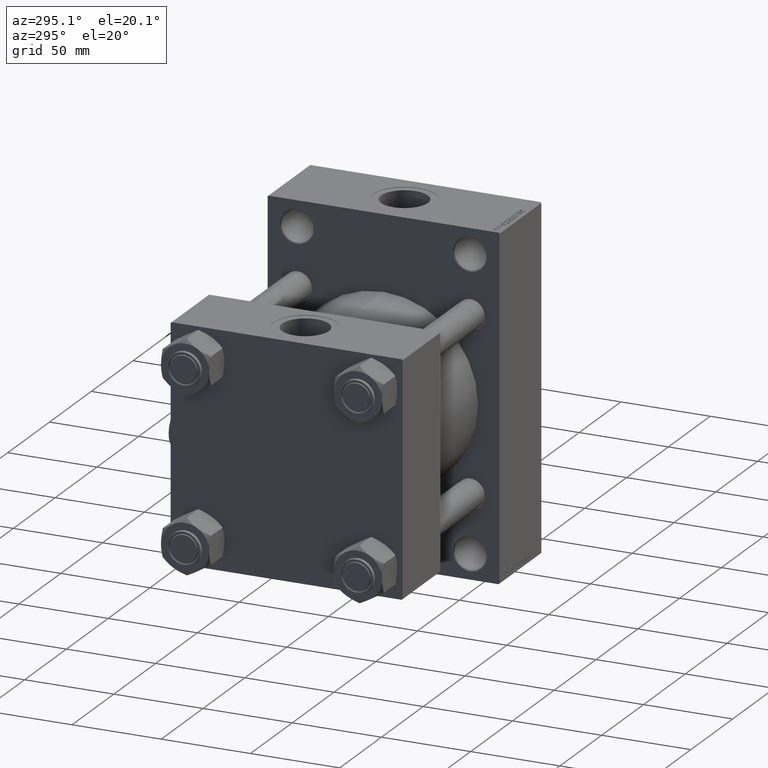
[diagram: clean part render]
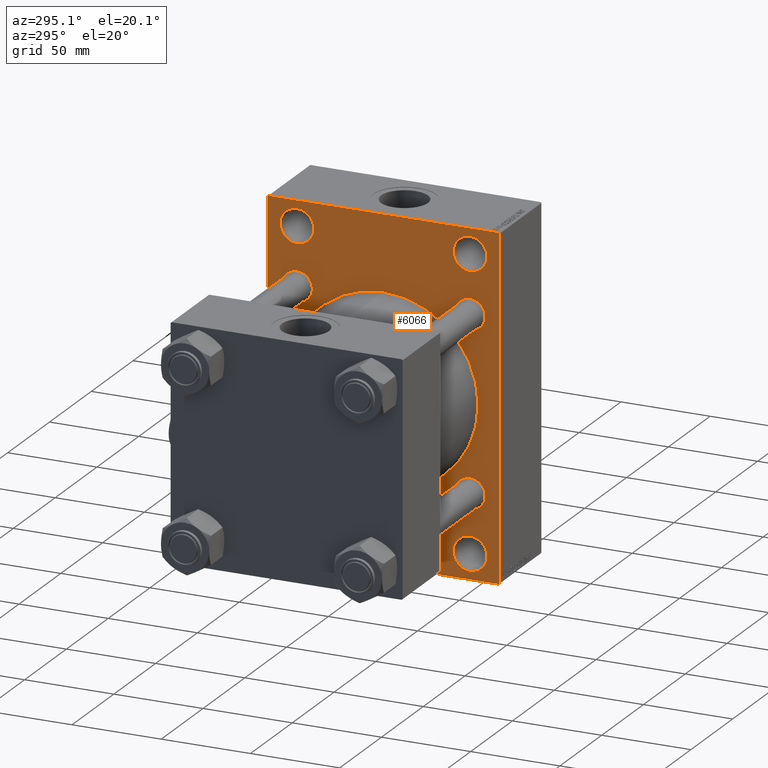
[diagram: same view with one face highlighted and labeled with its STEP entity id]
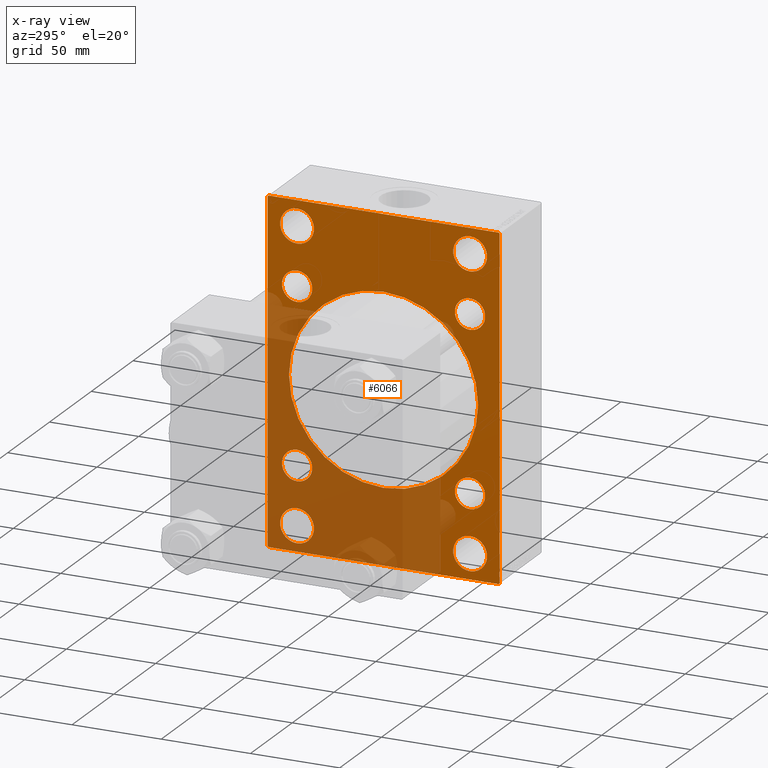
[diagram: x-ray of the same camera — body ghosted, the highlighted face saturated]
A machine part, auxiliary view. The second image highlights one B-rep face of the part: STEP entity #6066.
The next image is the same camera in x-ray: the body ghosted, the highlighted face saturated — about 41% of this face is hidden behind the body in this view.
In plain terms, the highlighted planar face has unit normal (-1, 0, 0).
Its self-contained STEP definition (entity closure, byte-faithful):
#38 = FACE_BOUND ( 'NONE', #16376, .T. ) ;
#106 = EDGE_CURVE ( 'NONE', #14303, #39760, #40443, .T. ) ;
#443 = CARTESIAN_POINT ( 'NONE',  ( 115.9999999999999858, -65.00000000000000000, -94.50000000000001421 ) ) ;
#499 = EDGE_CURVE ( 'NONE', #40307, #10974, #21007, .T. ) ;
#851 = DIRECTION ( 'NONE',  ( 1.000000000000000000, 0.000000000000000000, 0.000000000000000000 ) ) ;
#1623 = AXIS2_PLACEMENT_3D ( 'NONE', #45269, #16887, #33599 ) ;
#1734 = CARTESIAN_POINT ( 'NONE',  ( 115.9999999999999858, -48.44999999999998153, 56.95000000000001705 ) ) ;
#1929 = CIRCLE ( 'NONE', #27936, 8.500000000000007105 ) ;
#2267 = LINE ( 'NONE', #17770, #35915 ) ;
#2533 = DIRECTION ( 'NONE',  ( 1.000000000000000000, 0.000000000000000000, 0.000000000000000000 ) ) ;
#2793 = CIRCLE ( 'NONE', #38499, 53.00000000000000711 ) ;
#3406 = DIRECTION ( 'NONE',  ( 0.000000000000000000, 0.000000000000000000, -1.000000000000000000 ) ) ;
#3426 = VERTEX_POINT ( 'NONE', #43073 ) ;
#3537 = CIRCLE ( 'NONE', #27087, 9.499999999999925393 ) ;
#3967 = ORIENTED_EDGE ( 'NONE', *, *, #25429, .T. ) ;
#4139 = DIRECTION ( 'NONE',  ( 1.000000000000000000, 0.000000000000000000, 0.000000000000000000 ) ) ;
#4290 = CIRCLE ( 'NONE', #10762, 8.500000000000007105 ) ;
#4300 = VECTOR ( 'NONE', #18592, 1000.000000000000114 ) ;
#5174 = DIRECTION ( 'NONE',  ( -0.000000000000000000, -0.7071067811865474617, -0.7071067811865474617 ) ) ;
#5273 = DIRECTION ( 'NONE',  ( 1.000000000000000000, 0.000000000000000000, 0.000000000000000000 ) ) ;
#5801 = DIRECTION ( 'NONE',  ( 1.000000000000000000, 0.000000000000000000, 0.000000000000000000 ) ) ;
#5934 = DIRECTION ( 'NONE',  ( 0.000000000000000000, 0.000000000000000000, 1.000000000000000000 ) ) ;
#5945 = AXIS2_PLACEMENT_3D ( 'NONE', #35151, #4139, #27528 ) ;
#5993 = DIRECTION ( 'NONE',  ( 0.000000000000000000, 0.000000000000000000, 1.000000000000000000 ) ) ;
#6066 = ADVANCED_FACE ( 'NONE', ( #7160, #10711, #38, #23412, #15536, #31060, #22420, #18348, #27244, #42734 ), #33874, .T. ) ;
#6441 = CARTESIAN_POINT ( 'NONE',  ( 115.9999999999999858, -48.44999999999998153, -48.45000000000000995 ) ) ;
#6485 = DIRECTION ( 'NONE',  ( 1.000000000000000000, 0.000000000000000000, 0.000000000000000000 ) ) ;
#6549 = EDGE_CURVE ( 'NONE', #19329, #50125, #24340, .T. ) ;
#6660 = CARTESIAN_POINT ( 'NONE',  ( 115.9999999999999858, 79.75000000000000000, 79.75000000000000000 ) ) ;
#7021 = CARTESIAN_POINT ( 'NONE',  ( 115.9999999999999858, -2.602085213965210642E-15, 53.00000000000000711 ) ) ;
#7160 = FACE_BOUND ( 'NONE', #11750, .T. ) ;
#7270 = CARTESIAN_POINT ( 'NONE',  ( 115.9999999999999858, -65.00000000000000000, 94.49999999999998579 ) ) ;
#7391 = DIRECTION ( 'NONE',  ( 0.000000000000000000, 0.000000000000000000, 1.000000000000000000 ) ) ;
#7394 = CARTESIAN_POINT ( 'NONE',  ( 115.9999999999999858, 48.44999999999999574, -48.44999999999999574 ) ) ;
#7453 = EDGE_CURVE ( 'NONE', #28930, #23545, #46254, .T. ) ;
#7573 = CARTESIAN_POINT ( 'NONE',  ( 115.9999999999999858, 65.00000000000000000, 95.00000000000000000 ) ) ;
#7902 = DIRECTION ( 'NONE',  ( 0.000000000000000000, 0.000000000000000000, 1.000000000000000000 ) ) ;
#7987 = VERTEX_POINT ( 'NONE', #24684 ) ;
#8718 = CARTESIAN_POINT ( 'NONE',  ( 115.9999999999999858, 48.50000000000000000, 81.00000000000000000 ) ) ;
#8858 = ORIENTED_EDGE ( 'NONE', *, *, #32600, .T. ) ;
#9175 = CIRCLE ( 'NONE', #5945, 9.499999999999925393 ) ;
#9449 = DIRECTION ( 'NONE',  ( 0.000000000000000000, 0.000000000000000000, -1.000000000000000000 ) ) ;
#9746 = EDGE_LOOP ( 'NONE', ( #21507, #17225 ) ) ;
#9830 = CARTESIAN_POINT ( 'NONE',  ( 115.9999999999999858, 64.50000000000000000, 95.00000000000000000 ) ) ;
#9909 = VERTEX_POINT ( 'NONE', #45149 ) ;
#10070 = VERTEX_POINT ( 'NONE', #7021 ) ;
#10311 = EDGE_CURVE ( 'NONE', #21169, #22823, #38234, .T. ) ;
#10462 = VECTOR ( 'NONE', #3406, 1000.000000000000000 ) ;
#10711 = FACE_BOUND ( 'NONE', #31192, .T. ) ;
#10762 = AXIS2_PLACEMENT_3D ( 'NONE', #6441, #33650, #5934 ) ;
#10971 = DIRECTION ( 'NONE',  ( -0.000000000000000000, 0.000000000000000000, 1.000000000000000000 ) ) ;
#10974 = VERTEX_POINT ( 'NONE', #34049 ) ;
#11384 = CARTESIAN_POINT ( 'NONE',  ( 115.9999999999999858, -64.50000000000000000, -95.00000000000002842 ) ) ;
#11478 = CARTESIAN_POINT ( 'NONE',  ( 115.9999999999999858, 0.000000000000000000, 0.000000000000000000 ) ) ;
#11647 = EDGE_CURVE ( 'NONE', #7987, #9909, #43785, .T. ) ;
#11717 = DIRECTION ( 'NONE',  ( 1.000000000000000000, 0.000000000000000000, 0.000000000000000000 ) ) ;
#11750 = EDGE_LOOP ( 'NONE', ( #29307, #33249 ) ) ;
#11907 = DIRECTION ( 'NONE',  ( 0.000000000000000000, 0.000000000000000000, -1.000000000000000000 ) ) ;
#11949 = CARTESIAN_POINT ( 'NONE',  ( 115.9999999999999858, 48.50000000000000000, -81.00000000000000000 ) ) ;
#12663 = CARTESIAN_POINT ( 'NONE',  ( 115.9999999999999858, 48.50000000000000000, -71.50000000000007105 ) ) ;
#13073 = EDGE_CURVE ( 'NONE', #23545, #28930, #32473, .T. ) ;
#13075 = DIRECTION ( 'NONE',  ( 0.000000000000000000, -1.000000000000000000, 0.000000000000000000 ) ) ;
#13249 = EDGE_CURVE ( 'NONE', #3426, #21840, #45363, .T. ) ;
#13961 = ORIENTED_EDGE ( 'NONE', *, *, #23800, .T. ) ;
#14130 = CARTESIAN_POINT ( 'NONE',  ( 115.9999999999999858, -48.50000000000000000, -81.00000000000000000 ) ) ;
#14206 = LINE ( 'NONE', #29474, #25484 ) ;
#14303 = VERTEX_POINT ( 'NONE', #40964 ) ;
#14508 = DIRECTION ( 'NONE',  ( 0.000000000000000000, 0.000000000000000000, 1.000000000000000000 ) ) ;
#14640 = ORIENTED_EDGE ( 'NONE', *, *, #25347, .T. ) ;
#15285 = EDGE_CURVE ( 'NONE', #39842, #17418, #25009, .T. ) ;
#15536 = FACE_BOUND ( 'NONE', #33524, .T. ) ;
#15587 = DIRECTION ( 'NONE',  ( 0.000000000000000000, 0.000000000000000000, 1.000000000000000000 ) ) ;
#15704 = AXIS2_PLACEMENT_3D ( 'NONE', #35794, #5273, #46720 ) ;
#15712 = CARTESIAN_POINT ( 'NONE',  ( 115.9999999999999858, 65.00000000000000000, 95.00000000000000000 ) ) ;
#16163 = VECTOR ( 'NONE', #13075, 1000.000000000000000 ) ;
#16184 = CARTESIAN_POINT ( 'NONE',  ( 115.9999999999999858, 65.00000000000000000, -94.50000000000002842 ) ) ;
#16376 = EDGE_LOOP ( 'NONE', ( #13961, #22743 ) ) ;
#16446 = CARTESIAN_POINT ( 'NONE',  ( 115.9999999999999858, -48.44999999999998153, -39.95000000000000284 ) ) ;
#16561 = EDGE_CURVE ( 'NONE', #44993, #21467, #20313, .T. ) ;
#16758 = EDGE_CURVE ( 'NONE', #21467, #44993, #18696, .T. ) ;
#16887 = DIRECTION ( 'NONE',  ( 1.000000000000000000, 0.000000000000000000, 0.000000000000000000 ) ) ;
#16989 = DIRECTION ( 'NONE',  ( 0.000000000000000000, 0.000000000000000000, 1.000000000000000000 ) ) ;
#17040 = CARTESIAN_POINT ( 'NONE',  ( 115.9999999999999858, 48.50000000000000000, 81.00000000000000000 ) ) ;
#17146 = ORIENTED_EDGE ( 'NONE', *, *, #38330, .T. ) ;
#17225 = ORIENTED_EDGE ( 'NONE', *, *, #24733, .T. ) ;
#17412 = AXIS2_PLACEMENT_3D ( 'NONE', #29877, #38509, #34705 ) ;
#17418 = VERTEX_POINT ( 'NONE', #11384 ) ;
#17558 = VERTEX_POINT ( 'NONE', #16446 ) ;
#17738 = CARTESIAN_POINT ( 'NONE',  ( 115.9999999999999858, -48.44999999999998153, 48.45000000000000995 ) ) ;
#17770 = CARTESIAN_POINT ( 'NONE',  ( 115.9999999999999858, -79.75000000000092371, -79.74999999999870681 ) ) ;
#17788 = DIRECTION ( 'NONE',  ( 1.000000000000000000, 0.000000000000000000, 0.000000000000000000 ) ) ;
#17838 = DIRECTION ( 'NONE',  ( 1.000000000000000000, 0.000000000000000000, 0.000000000000000000 ) ) ;
#18348 = FACE_BOUND ( 'NONE', #41433, .T. ) ;
#18592 = DIRECTION ( 'NONE',  ( 0.000000000000000000, 0.7071067811865474617, -0.7071067811865474617 ) ) ;
#18600 = DIRECTION ( 'NONE',  ( -1.000000000000000000, 0.000000000000000000, -0.000000000000000000 ) ) ;
#18696 = CIRCLE ( 'NONE', #49533, 8.500000000000007105 ) ;
#18984 = ORIENTED_EDGE ( 'NONE', *, *, #7453, .T. ) ;
#19329 = VERTEX_POINT ( 'NONE', #31237 ) ;
#19536 = LINE ( 'NONE', #15712, #41610 ) ;
#19591 = VERTEX_POINT ( 'NONE', #9830 ) ;
#20313 = CIRCLE ( 'NONE', #42217, 8.500000000000007105 ) ;
#20667 = ORIENTED_EDGE ( 'NONE', *, *, #11647, .T. ) ;
#20820 = EDGE_CURVE ( 'NONE', #17418, #22823, #2267, .T. ) ;
#21007 = CIRCLE ( 'NONE', #49403, 8.500000000000007105 ) ;
#21016 = ORIENTED_EDGE ( 'NONE', *, *, #13073, .T. ) ;
#21158 = CARTESIAN_POINT ( 'NONE',  ( 115.9999999999999858, -2.602085213965210642E-15, 0.000000000000000000 ) ) ;
#21169 = VERTEX_POINT ( 'NONE', #7270 ) ;
#21467 = VERTEX_POINT ( 'NONE', #42287 ) ;
#21507 = ORIENTED_EDGE ( 'NONE', *, *, #43673, .T. ) ;
#21840 = VERTEX_POINT ( 'NONE', #12663 ) ;
#22012 = DIRECTION ( 'NONE',  ( 0.000000000000000000, 0.000000000000000000, 1.000000000000000000 ) ) ;
#22205 = ORIENTED_EDGE ( 'NONE', *, *, #16561, .T. ) ;
#22420 = FACE_BOUND ( 'NONE', #22623, .T. ) ;
#22509 = DIRECTION ( 'NONE',  ( 1.000000000000000000, 0.000000000000000000, 0.000000000000000000 ) ) ;
#22623 = EDGE_LOOP ( 'NONE', ( #14640, #37864 ) ) ;
#22642 = DIRECTION ( 'NONE',  ( 1.000000000000000000, 0.000000000000000000, 0.000000000000000000 ) ) ;
#22743 = ORIENTED_EDGE ( 'NONE', *, *, #13249, .T. ) ;
#22823 = VERTEX_POINT ( 'NONE', #443 ) ;
#23189 = CARTESIAN_POINT ( 'NONE',  ( 115.9999999999999858, -48.50000000000000000, 71.50000000000007105 ) ) ;
#23412 = FACE_BOUND ( 'NONE', #40947, .T. ) ;
#23545 = VERTEX_POINT ( 'NONE', #44124 ) ;
#23800 = EDGE_CURVE ( 'NONE', #21840, #3426, #3537, .T. ) ;
#24273 = ORIENTED_EDGE ( 'NONE', *, *, #31292, .T. ) ;
#24340 = CIRCLE ( 'NONE', #48680, 9.499999999999925393 ) ;
#24684 = CARTESIAN_POINT ( 'NONE',  ( 115.9999999999999858, 48.50000000000000000, 71.50000000000007105 ) ) ;
#24733 = EDGE_CURVE ( 'NONE', #39590, #10070, #29561, .T. ) ;
#25009 = LINE ( 'NONE', #44337, #16163 ) ;
#25347 = EDGE_CURVE ( 'NONE', #10974, #40307, #1929, .T. ) ;
#25429 = EDGE_CURVE ( 'NONE', #21169, #45736, #14206, .T. ) ;
#25484 = VECTOR ( 'NONE', #28967, 1000.000000000000114 ) ;
#25579 = ORIENTED_EDGE ( 'NONE', *, *, #20820, .T. ) ;
#25808 = DIRECTION ( 'NONE',  ( 1.000000000000000000, 0.000000000000000000, 0.000000000000000000 ) ) ;
#25810 = EDGE_CURVE ( 'NONE', #19591, #31593, #40333, .T. ) ;
#25824 = ORIENTED_EDGE ( 'NONE', *, *, #10311, .F. ) ;
#26708 = CARTESIAN_POINT ( 'NONE',  ( 115.9999999999999858, 48.44999999999999574, -48.44999999999999574 ) ) ;
#26759 = CARTESIAN_POINT ( 'NONE',  ( 115.9999999999999858, -48.44999999999998153, -56.95000000000001705 ) ) ;
#27087 = AXIS2_PLACEMENT_3D ( 'NONE', #45131, #25808, #5993 ) ;
#27127 = AXIS2_PLACEMENT_3D ( 'NONE', #37079, #40879, #41131 ) ;
#27195 = AXIS2_PLACEMENT_3D ( 'NONE', #8718, #851, #15587 ) ;
#27244 = FACE_BOUND ( 'NONE', #9746, .T. ) ;
#27528 = DIRECTION ( 'NONE',  ( 0.000000000000000000, 0.000000000000000000, 1.000000000000000000 ) ) ;
#27936 = AXIS2_PLACEMENT_3D ( 'NONE', #26708, #42211, #7391 ) ;
#28068 = LINE ( 'NONE', #43554, #46747 ) ;
#28131 = VECTOR ( 'NONE', #31731, 1000.000000000000000 ) ;
#28144 = VERTEX_POINT ( 'NONE', #16184 ) ;
#28392 = EDGE_LOOP ( 'NONE', ( #22205, #41483 ) ) ;
#28930 = VERTEX_POINT ( 'NONE', #1734 ) ;
#28967 = DIRECTION ( 'NONE',  ( -0.000000000000000000, 0.7071067811865474617, 0.7071067811865474617 ) ) ;
#28983 = CARTESIAN_POINT ( 'NONE',  ( 115.9999999999999858, 65.00000000000000000, 94.50000000000000000 ) ) ;
#29307 = ORIENTED_EDGE ( 'NONE', *, *, #6549, .T. ) ;
#29338 = EDGE_CURVE ( 'NONE', #42341, #17558, #45005, .T. ) ;
#29474 = CARTESIAN_POINT ( 'NONE',  ( 115.9999999999999858, -79.74999999999998579, 79.74999999999998579 ) ) ;
#29561 = CIRCLE ( 'NONE', #27127, 53.00000000000000711 ) ;
#29745 = ORIENTED_EDGE ( 'NONE', *, *, #48273, .F. ) ;
#29877 = CARTESIAN_POINT ( 'NONE',  ( 115.9999999999999858, -48.44999999999998153, -48.45000000000000995 ) ) ;
#31060 = FACE_BOUND ( 'NONE', #28392, .T. ) ;
#31192 = EDGE_LOOP ( 'NONE', ( #39629, #17146 ) ) ;
#31237 = CARTESIAN_POINT ( 'NONE',  ( 115.9999999999999858, -48.50000000000000000, 90.49999999999992895 ) ) ;
#31292 = EDGE_CURVE ( 'NONE', #9909, #7987, #32893, .T. ) ;
#31593 = VERTEX_POINT ( 'NONE', #28983 ) ;
#31731 = DIRECTION ( 'NONE',  ( 0.000000000000000000, -1.000000000000000000, -1.067522139062650425E-16 ) ) ;
#32473 = CIRCLE ( 'NONE', #1623, 8.500000000000007105 ) ;
#32519 = EDGE_LOOP ( 'NONE', ( #44221, #25579, #25824, #3967, #29745, #35525, #43556, #8858 ) ) ;
#32600 = EDGE_CURVE ( 'NONE', #28144, #39842, #28068, .T. ) ;
#32893 = CIRCLE ( 'NONE', #27195, 9.499999999999925393 ) ;
#33249 = ORIENTED_EDGE ( 'NONE', *, *, #39230, .T. ) ;
#33436 = DIRECTION ( 'NONE',  ( 0.000000000000000000, 0.000000000000000000, 1.000000000000000000 ) ) ;
#33524 = EDGE_LOOP ( 'NONE', ( #18984, #21016 ) ) ;
#33599 = DIRECTION ( 'NONE',  ( 0.000000000000000000, 0.000000000000000000, 1.000000000000000000 ) ) ;
#33650 = DIRECTION ( 'NONE',  ( 1.000000000000000000, 0.000000000000000000, 0.000000000000000000 ) ) ;
#33874 = PLANE ( 'NONE',  #45413 ) ;
#34049 = CARTESIAN_POINT ( 'NONE',  ( 115.9999999999999858, 48.44999999999999574, -39.94999999999998863 ) ) ;
#34705 = DIRECTION ( 'NONE',  ( 0.000000000000000000, 0.000000000000000000, 1.000000000000000000 ) ) ;
#34891 = CARTESIAN_POINT ( 'NONE',  ( 115.9999999999999858, -64.50000000000000000, 94.99999999999998579 ) ) ;
#34938 = ORIENTED_EDGE ( 'NONE', *, *, #37148, .T. ) ;
#35151 = CARTESIAN_POINT ( 'NONE',  ( 115.9999999999999858, -48.50000000000000000, -81.00000000000000000 ) ) ;
#35525 = ORIENTED_EDGE ( 'NONE', *, *, #25810, .T. ) ;
#35629 = AXIS2_PLACEMENT_3D ( 'NONE', #11949, #46778, #47776 ) ;
#35794 = CARTESIAN_POINT ( 'NONE',  ( 115.9999999999999858, -48.50000000000000000, 81.00000000000000000 ) ) ;
#35915 = VECTOR ( 'NONE', #39906, 999.9999999999998863 ) ;
#36790 = EDGE_CURVE ( 'NONE', #31593, #28144, #19536, .T. ) ;
#37079 = CARTESIAN_POINT ( 'NONE',  ( 115.9999999999999858, -2.602085213965210642E-15, 0.000000000000000000 ) ) ;
#37148 = EDGE_CURVE ( 'NONE', #17558, #42341, #4290, .T. ) ;
#37363 = CARTESIAN_POINT ( 'NONE',  ( 115.9999999999999858, 48.44999999999999574, 48.44999999999999574 ) ) ;
#37610 = DIRECTION ( 'NONE',  ( 0.000000000000000000, 0.000000000000000000, 1.000000000000000000 ) ) ;
#37633 = CIRCLE ( 'NONE', #15704, 9.499999999999925393 ) ;
#37864 = ORIENTED_EDGE ( 'NONE', *, *, #499, .T. ) ;
#38234 = LINE ( 'NONE', #46350, #10462 ) ;
#38330 = EDGE_CURVE ( 'NONE', #39760, #14303, #9175, .T. ) ;
#38499 = AXIS2_PLACEMENT_3D ( 'NONE', #21158, #17838, #9449 ) ;
#38509 = DIRECTION ( 'NONE',  ( 1.000000000000000000, 0.000000000000000000, 0.000000000000000000 ) ) ;
#38824 = AXIS2_PLACEMENT_3D ( 'NONE', #14130, #22509, #22012 ) ;
#39011 = AXIS2_PLACEMENT_3D ( 'NONE', #17738, #5801, #16989 ) ;
#39230 = EDGE_CURVE ( 'NONE', #50125, #19329, #37633, .T. ) ;
#39305 = CARTESIAN_POINT ( 'NONE',  ( 115.9999999999999858, 48.44999999999999574, -56.95000000000000284 ) ) ;
#39590 = VERTEX_POINT ( 'NONE', #47282 ) ;
#39629 = ORIENTED_EDGE ( 'NONE', *, *, #106, .T. ) ;
#39760 = VERTEX_POINT ( 'NONE', #44154 ) ;
#39842 = VERTEX_POINT ( 'NONE', #39855 ) ;
#39855 = CARTESIAN_POINT ( 'NONE',  ( 115.9999999999999858, 64.50000000000000000, -95.00000000000002842 ) ) ;
#39865 = CARTESIAN_POINT ( 'NONE',  ( 115.9999999999999858, 48.44999999999999574, 56.95000000000000284 ) ) ;
#39906 = DIRECTION ( 'NONE',  ( 0.000000000000000000, -0.7071067811865376918, 0.7071067811865574537 ) ) ;
#40307 = VERTEX_POINT ( 'NONE', #39305 ) ;
#40333 = LINE ( 'NONE', #6660, #4300 ) ;
#40443 = CIRCLE ( 'NONE', #38824, 9.499999999999925393 ) ;
#40665 = DIRECTION ( 'NONE',  ( 0.000000000000000000, 0.000000000000000000, 1.000000000000000000 ) ) ;
#40879 = DIRECTION ( 'NONE',  ( 1.000000000000000000, 0.000000000000000000, 0.000000000000000000 ) ) ;
#40947 = EDGE_LOOP ( 'NONE', ( #24273, #20667 ) ) ;
#40964 = CARTESIAN_POINT ( 'NONE',  ( 115.9999999999999858, -48.50000000000000000, -71.50000000000007105 ) ) ;
#41131 = DIRECTION ( 'NONE',  ( 0.000000000000000000, 0.000000000000000000, -1.000000000000000000 ) ) ;
#41433 = EDGE_LOOP ( 'NONE', ( #34938, #50032 ) ) ;
#41483 = ORIENTED_EDGE ( 'NONE', *, *, #16758, .T. ) ;
#41610 = VECTOR ( 'NONE', #11907, 1000.000000000000000 ) ;
#42211 = DIRECTION ( 'NONE',  ( 1.000000000000000000, 0.000000000000000000, 0.000000000000000000 ) ) ;
#42217 = AXIS2_PLACEMENT_3D ( 'NONE', #46537, #11717, #7902 ) ;
#42287 = CARTESIAN_POINT ( 'NONE',  ( 115.9999999999999858, 48.44999999999999574, 39.94999999999998863 ) ) ;
#42341 = VERTEX_POINT ( 'NONE', #26759 ) ;
#42392 = LINE ( 'NONE', #7573, #28131 ) ;
#42734 = FACE_OUTER_BOUND ( 'NONE', #32519, .T. ) ;
#43073 = CARTESIAN_POINT ( 'NONE',  ( 115.9999999999999858, 48.50000000000000000, -90.49999999999992895 ) ) ;
#43554 = CARTESIAN_POINT ( 'NONE',  ( 115.9999999999999858, 79.75000000000000000, -79.75000000000000000 ) ) ;
#43556 = ORIENTED_EDGE ( 'NONE', *, *, #36790, .T. ) ;
#43673 = EDGE_CURVE ( 'NONE', #10070, #39590, #2793, .T. ) ;
#43785 = CIRCLE ( 'NONE', #44608, 9.499999999999925393 ) ;
#44124 = CARTESIAN_POINT ( 'NONE',  ( 115.9999999999999858, -48.44999999999998153, 39.95000000000000284 ) ) ;
#44154 = CARTESIAN_POINT ( 'NONE',  ( 115.9999999999999858, -48.50000000000000000, -90.49999999999992895 ) ) ;
#44221 = ORIENTED_EDGE ( 'NONE', *, *, #15285, .T. ) ;
#44337 = CARTESIAN_POINT ( 'NONE',  ( 115.9999999999999858, 65.00000000000000000, -95.00000000000002842 ) ) ;
#44608 = AXIS2_PLACEMENT_3D ( 'NONE', #17040, #17788, #40665 ) ;
#44611 = CARTESIAN_POINT ( 'NONE',  ( 115.9999999999999858, -48.50000000000000000, 81.00000000000000000 ) ) ;
#44993 = VERTEX_POINT ( 'NONE', #39865 ) ;
#45005 = CIRCLE ( 'NONE', #17412, 8.500000000000007105 ) ;
#45131 = CARTESIAN_POINT ( 'NONE',  ( 115.9999999999999858, 48.50000000000000000, -81.00000000000000000 ) ) ;
#45149 = CARTESIAN_POINT ( 'NONE',  ( 115.9999999999999858, 48.50000000000000000, 90.49999999999992895 ) ) ;
#45269 = CARTESIAN_POINT ( 'NONE',  ( 115.9999999999999858, -48.44999999999998153, 48.45000000000000995 ) ) ;
#45363 = CIRCLE ( 'NONE', #35629, 9.499999999999925393 ) ;
#45413 = AXIS2_PLACEMENT_3D ( 'NONE', #11478, #18600, #10971 ) ;
#45736 = VERTEX_POINT ( 'NONE', #34891 ) ;
#46254 = CIRCLE ( 'NONE', #39011, 8.500000000000007105 ) ;
#46350 = CARTESIAN_POINT ( 'NONE',  ( 115.9999999999999858, -65.00000000000000000, 94.99999999999998579 ) ) ;
#46537 = CARTESIAN_POINT ( 'NONE',  ( 115.9999999999999858, 48.44999999999999574, 48.44999999999999574 ) ) ;
#46720 = DIRECTION ( 'NONE',  ( 0.000000000000000000, 0.000000000000000000, 1.000000000000000000 ) ) ;
#46747 = VECTOR ( 'NONE', #5174, 1000.000000000000114 ) ;
#46778 = DIRECTION ( 'NONE',  ( 1.000000000000000000, 0.000000000000000000, 0.000000000000000000 ) ) ;
#47282 = CARTESIAN_POINT ( 'NONE',  ( 115.9999999999999858, 3.888542821515762466E-15, -53.00000000000000711 ) ) ;
#47776 = DIRECTION ( 'NONE',  ( 0.000000000000000000, 0.000000000000000000, 1.000000000000000000 ) ) ;
#48273 = EDGE_CURVE ( 'NONE', #19591, #45736, #42392, .T. ) ;
#48680 = AXIS2_PLACEMENT_3D ( 'NONE', #44611, #6485, #33436 ) ;
#49403 = AXIS2_PLACEMENT_3D ( 'NONE', #7394, #22642, #14508 ) ;
#49533 = AXIS2_PLACEMENT_3D ( 'NONE', #37363, #2533, #37610 ) ;
#50032 = ORIENTED_EDGE ( 'NONE', *, *, #29338, .T. ) ;
#50125 = VERTEX_POINT ( 'NONE', #23189 ) ;